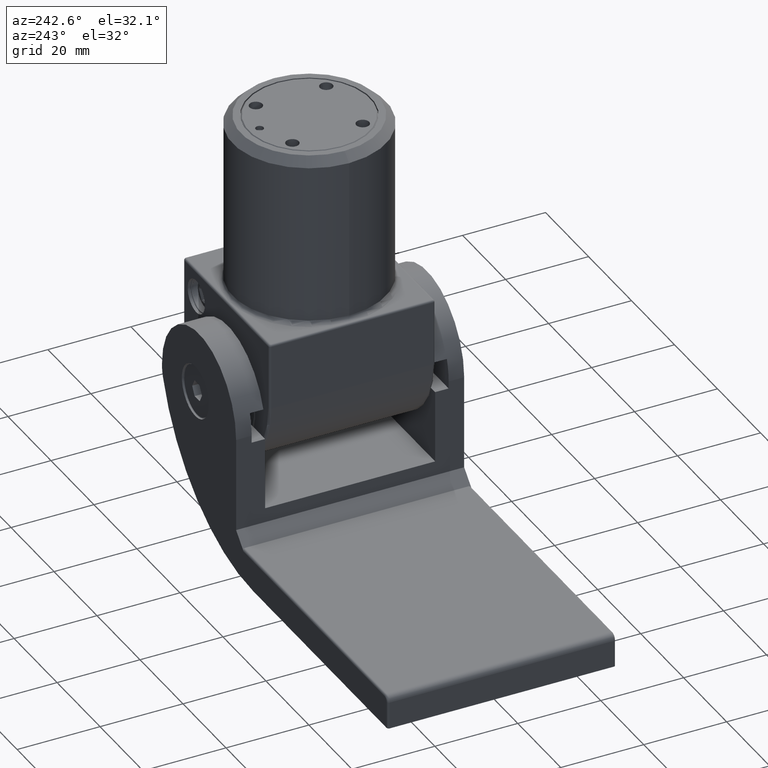
[diagram: clean part render]
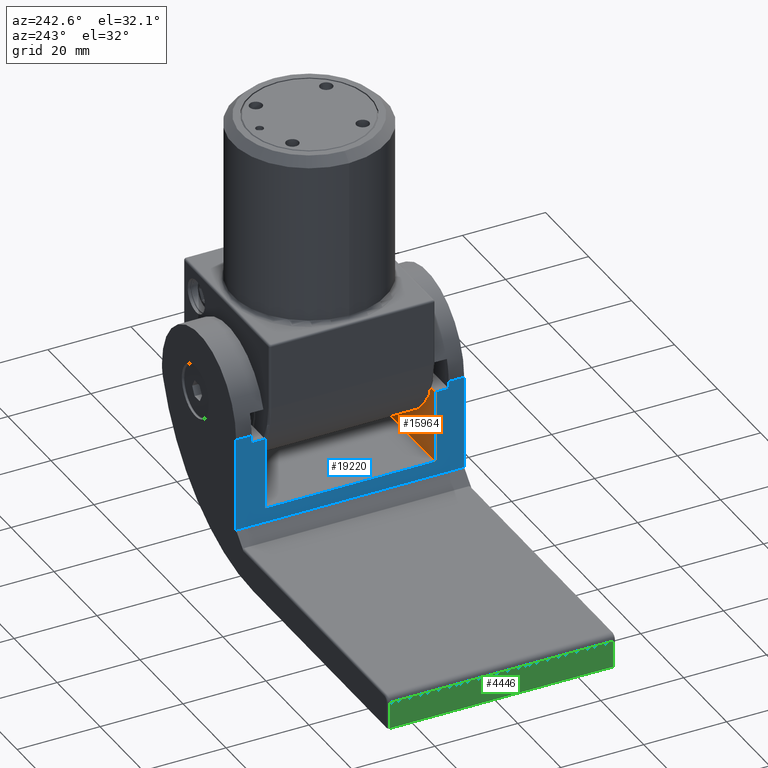
[diagram: same view with three faces highlighted in distinct colors, each labeled with its STEP entity id]
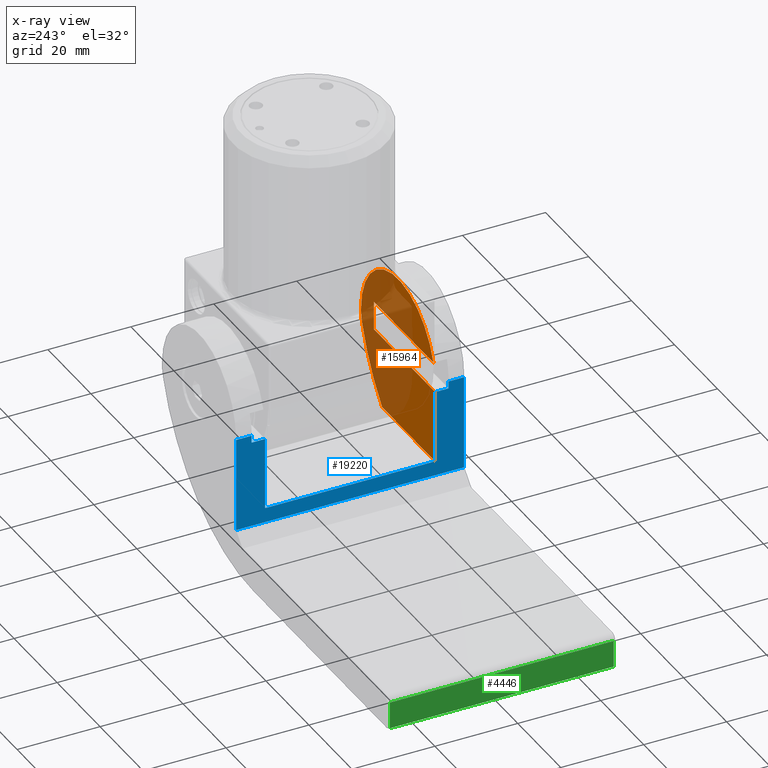
[diagram: x-ray of the same camera — body ghosted, the three highlighted faces saturated]
A machine part, auxiliary view with three faces highlighted in distinct colors.
The next image is the same camera in x-ray (body ghosted, the three faces saturated) — at least one of them is partly hidden behind the body in this view.
Their STEP definitions:

[orange] entity #15964 — the highlighted planar face has unit normal (0, -1, 0).
#570 = ORIENTED_EDGE ( 'NONE', *, *, #10798, .T. ) ;
#1446 = ORIENTED_EDGE ( 'NONE', *, *, #21345, .F. ) ;
#1845 = DIRECTION ( 'NONE',  ( 0.000000000000000000, 0.000000000000000000, 1.000000000000000000 ) ) ;
#2025 = CIRCLE ( 'NONE', #6983, 17.25000000000000711 ) ;
#2366 = AXIS2_PLACEMENT_3D ( 'NONE', #5523, #17424, #7119 ) ;
#3204 = LINE ( 'NONE', #5062, #17753 ) ;
#3335 = CARTESIAN_POINT ( 'NONE',  ( 17.99999999999998934, -20.50000000000000000, 13.49999999999999822 ) ) ;
#3606 = DIRECTION ( 'NONE',  ( 0.000000000000000000, 0.000000000000000000, -1.000000000000000000 ) ) ;
#4054 = ORIENTED_EDGE ( 'NONE', *, *, #12174, .F. ) ;
#4516 = DIRECTION ( 'NONE',  ( 0.000000000000000000, -0.000000000000000000, -1.000000000000000000 ) ) ;
#4692 = CARTESIAN_POINT ( 'NONE',  ( 46.49999999999998579, -20.50000000000000000, 13.50000000000000000 ) ) ;
#4985 = DIRECTION ( 'NONE',  ( 1.000000000000000000, 0.000000000000000000, 0.000000000000000000 ) ) ;
#5062 = CARTESIAN_POINT ( 'NONE',  ( 17.99999999999999289, -20.50000000000000000, -10.99999999999999645 ) ) ;
#5201 = VECTOR ( 'NONE', #1845, 1000.000000000000000 ) ;
#5208 = EDGE_CURVE ( 'NONE', #8199, #10697, #21118, .T. ) ;
#5216 = VECTOR ( 'NONE', #6667, 1000.000000000000000 ) ;
#5384 = CARTESIAN_POINT ( 'NONE',  ( 46.49999999999998579, -20.50000000000000000, -71.40732788777421547 ) ) ;
#5523 = CARTESIAN_POINT ( 'NONE',  ( 9.999999999999980460, -20.50000000000000000, 18.61184210526317884 ) ) ;
#6315 = CARTESIAN_POINT ( 'NONE',  ( 18.81832327484500667, -20.50000000000000000, 13.49999999999999645 ) ) ;
#6389 = PLANE ( 'NONE',  #10819 ) ;
#6667 = DIRECTION ( 'NONE',  ( -1.000000000000000000, 0.000000000000000000, -6.086749038515113044E-17 ) ) ;
#6983 = AXIS2_PLACEMENT_3D ( 'NONE', #12229, #14046, #17483 ) ;
#7034 = CIRCLE ( 'NONE', #2366, 44.11184210526318594 ) ;
#7119 = DIRECTION ( 'NONE',  ( 0.000000000000000000, 0.000000000000000000, -1.000000000000000000 ) ) ;
#7511 = CARTESIAN_POINT ( 'NONE',  ( 42.69546483921939739, -20.50000000000000000, -10.99999999999999645 ) ) ;
#7581 = CARTESIAN_POINT ( 'NONE',  ( 17.99999999999998934, -20.50000000000000000, 6.499999999999998224 ) ) ;
#7707 = CARTESIAN_POINT ( 'NONE',  ( 17.99999999999999289, -20.50000000000000000, -10.99999999999999645 ) ) ;
#8199 = VERTEX_POINT ( 'NONE', #11514 ) ;
#8569 = LINE ( 'NONE', #12859, #13965 ) ;
#9004 = LINE ( 'NONE', #3335, #5216 ) ;
#9157 = ORIENTED_EDGE ( 'NONE', *, *, #5208, .T. ) ;
#9410 = VERTEX_POINT ( 'NONE', #15524 ) ;
#10074 = EDGE_CURVE ( 'NONE', #16486, #8199, #8569, .T. ) ;
#10294 = DIRECTION ( 'NONE',  ( -0.000000000000000000, -0.000000000000000000, 1.000000000000000000 ) ) ;
#10472 = EDGE_CURVE ( 'NONE', #15147, #19306, #7034, .T. ) ;
#10697 = VERTEX_POINT ( 'NONE', #4692 ) ;
#10798 = EDGE_CURVE ( 'NONE', #10697, #18405, #9004, .T. ) ;
#10819 = AXIS2_PLACEMENT_3D ( 'NONE', #11291, #19958, #4516 ) ;
#11291 = CARTESIAN_POINT ( 'NONE',  ( 17.99999999999999289, -20.50000000000000000, -71.40732788777421547 ) ) ;
#11514 = CARTESIAN_POINT ( 'NONE',  ( 46.49999999999998579, -20.50000000000000000, 6.499999999999992006 ) ) ;
#11516 = LINE ( 'NONE', #18740, #15568 ) ;
#11555 = FACE_OUTER_BOUND ( 'NONE', #18696, .T. ) ;
#11635 = CARTESIAN_POINT ( 'NONE',  ( 52.02748312439729972, -20.50000000000000000, 5.212391513982630897 ) ) ;
#12174 = EDGE_CURVE ( 'NONE', #19306, #9410, #18413, .T. ) ;
#12229 = CARTESIAN_POINT ( 'NONE',  ( 35.25000000000000000, -20.50000000000000000, 8.249999999999996447 ) ) ;
#12859 = CARTESIAN_POINT ( 'NONE',  ( 17.99999999999999289, -20.50000000000000000, 6.499999999999992006 ) ) ;
#13965 = VECTOR ( 'NONE', #14673, 1000.000000000000000 ) ;
#14046 = DIRECTION ( 'NONE',  ( 0.000000000000000000, -1.000000000000000000, 0.000000000000000000 ) ) ;
#14514 = ORIENTED_EDGE ( 'NONE', *, *, #19421, .F. ) ;
#14673 = DIRECTION ( 'NONE',  ( 1.000000000000000000, 0.000000000000000000, 0.000000000000000000 ) ) ;
#15147 = VERTEX_POINT ( 'NONE', #7511 ) ;
#15524 = CARTESIAN_POINT ( 'NONE',  ( 52.50000000000000711, -20.50000000000000000, 8.249999999999998224 ) ) ;
#15568 = VECTOR ( 'NONE', #10294, 1000.000000000000000 ) ;
#15964 = ADVANCED_FACE ( 'NONE', ( #11555 ), #6389, .F. ) ;
#16209 = ORIENTED_EDGE ( 'NONE', *, *, #17708, .T. ) ;
#16253 = AXIS2_PLACEMENT_3D ( 'NONE', #17449, #20641, #3606 ) ;
#16486 = VERTEX_POINT ( 'NONE', #7581 ) ;
#17424 = DIRECTION ( 'NONE',  ( 0.000000000000000000, -1.000000000000000000, 0.000000000000000000 ) ) ;
#17449 = CARTESIAN_POINT ( 'NONE',  ( 42.49999999999999289, -20.50000000000000000, 8.249999999999996447 ) ) ;
#17483 = DIRECTION ( 'NONE',  ( 0.000000000000000000, 0.000000000000000000, -1.000000000000000000 ) ) ;
#17708 = EDGE_CURVE ( 'NONE', #19567, #16486, #11516, .T. ) ;
#17753 = VECTOR ( 'NONE', #4985, 1000.000000000000000 ) ;
#17879 = ORIENTED_EDGE ( 'NONE', *, *, #10472, .F. ) ;
#18405 = VERTEX_POINT ( 'NONE', #6315 ) ;
#18413 = CIRCLE ( 'NONE', #16253, 10.00000000000000533 ) ;
#18696 = EDGE_LOOP ( 'NONE', ( #9157, #570, #14514, #4054, #17879, #1446, #16209, #20625 ) ) ;
#18740 = CARTESIAN_POINT ( 'NONE',  ( 17.99999999999999289, -20.50000000000000000, -71.40732788777421547 ) ) ;
#19306 = VERTEX_POINT ( 'NONE', #11635 ) ;
#19421 = EDGE_CURVE ( 'NONE', #9410, #18405, #2025, .T. ) ;
#19567 = VERTEX_POINT ( 'NONE', #7707 ) ;
#19958 = DIRECTION ( 'NONE',  ( 0.000000000000000000, -1.000000000000000000, 0.000000000000000000 ) ) ;
#20625 = ORIENTED_EDGE ( 'NONE', *, *, #10074, .T. ) ;
#20641 = DIRECTION ( 'NONE',  ( 0.000000000000000000, -1.000000000000000000, 0.000000000000000000 ) ) ;
#21118 = LINE ( 'NONE', #5384, #5201 ) ;
#21345 = EDGE_CURVE ( 'NONE', #19567, #15147, #3204, .T. ) ;

[blue] entity #19220 — the highlighted planar face has unit normal (1, 0, 0).
#652 = VERTEX_POINT ( 'NONE', #9511 ) ;
#694 = LINE ( 'NONE', #16120, #10125 ) ;
#933 = FACE_OUTER_BOUND ( 'NONE', #7736, .T. ) ;
#1245 = PLANE ( 'NONE',  #17777 ) ;
#1780 = EDGE_CURVE ( 'NONE', #15010, #16486, #20674, .T. ) ;
#1941 = EDGE_CURVE ( 'NONE', #9949, #5022, #694, .T. ) ;
#1998 = CARTESIAN_POINT ( 'NONE',  ( 17.99999999999998934, -23.75000000000000000, 6.499999999999998224 ) ) ;
#2036 = ORIENTED_EDGE ( 'NONE', *, *, #7534, .F. ) ;
#2088 = CARTESIAN_POINT ( 'NONE',  ( 17.99999999999998934, 27.50000000000000000, -14.49999999999999822 ) ) ;
#2394 = VERTEX_POINT ( 'NONE', #2477 ) ;
#2477 = CARTESIAN_POINT ( 'NONE',  ( 17.99999999999998934, 23.75000000000000000, 6.499999999999998224 ) ) ;
#2563 = LINE ( 'NONE', #5844, #18489 ) ;
#2826 = VECTOR ( 'NONE', #17342, 1000.000000000000000 ) ;
#2924 = CARTESIAN_POINT ( 'NONE',  ( 17.99999999999998934, 23.75000000000000000, 6.499999999999998224 ) ) ;
#2972 = CARTESIAN_POINT ( 'NONE',  ( 17.99999999999998934, -27.50000000000000000, -14.49999999999999822 ) ) ;
#2982 = DIRECTION ( 'NONE',  ( 0.000000000000000000, 0.000000000000000000, 1.000000000000000000 ) ) ;
#2998 = DIRECTION ( 'NONE',  ( 0.000000000000000000, 0.000000000000000000, 1.000000000000000000 ) ) ;
#3076 = VERTEX_POINT ( 'NONE', #13371 ) ;
#3834 = VECTOR ( 'NONE', #15650, 1000.000000000000000 ) ;
#4190 = LINE ( 'NONE', #12442, #2826 ) ;
#4268 = DIRECTION ( 'NONE',  ( -0.000000000000000000, 1.000000000000000000, -0.000000000000000000 ) ) ;
#4374 = CARTESIAN_POINT ( 'NONE',  ( 17.99999999999998934, 23.75000000000000000, 8.249999999999992895 ) ) ;
#4403 = ORIENTED_EDGE ( 'NONE', *, *, #14250, .T. ) ;
#4609 = CARTESIAN_POINT ( 'NONE',  ( 17.99999999999998934, 20.50000000000000000, -10.99999999999999645 ) ) ;
#4746 = VECTOR ( 'NONE', #4268, 1000.000000000000000 ) ;
#4937 = DIRECTION ( 'NONE',  ( -0.000000000000000000, -1.000000000000000000, -0.000000000000000000 ) ) ;
#4990 = DIRECTION ( 'NONE',  ( 0.000000000000000000, 0.000000000000000000, 1.000000000000000000 ) ) ;
#5002 = EDGE_CURVE ( 'NONE', #15010, #3076, #19790, .T. ) ;
#5022 = VERTEX_POINT ( 'NONE', #21894 ) ;
#5844 = CARTESIAN_POINT ( 'NONE',  ( 17.99999999999998934, 27.50000000000000000, -14.49999999999999822 ) ) ;
#6228 = LINE ( 'NONE', #2924, #18921 ) ;
#6602 = DIRECTION ( 'NONE',  ( 0.000000000000000000, 0.000000000000000000, -1.000000000000000000 ) ) ;
#6647 = EDGE_CURVE ( 'NONE', #18639, #9065, #12984, .T. ) ;
#7207 = EDGE_CURVE ( 'NONE', #3076, #652, #20799, .T. ) ;
#7443 = DIRECTION ( 'NONE',  ( -0.000000000000000000, -1.000000000000000000, -0.000000000000000000 ) ) ;
#7534 = EDGE_CURVE ( 'NONE', #18639, #19567, #17794, .T. ) ;
#7581 = CARTESIAN_POINT ( 'NONE',  ( 17.99999999999998934, -20.50000000000000000, 6.499999999999998224 ) ) ;
#7707 = CARTESIAN_POINT ( 'NONE',  ( 17.99999999999999289, -20.50000000000000000, -10.99999999999999645 ) ) ;
#7736 = EDGE_LOOP ( 'NONE', ( #16101, #13333, #13525, #2036, #13462, #13264, #4403, #16046, #13019, #10146, #12801, #18067 ) ) ;
#7988 = EDGE_CURVE ( 'NONE', #19307, #652, #9989, .T. ) ;
#8900 = VECTOR ( 'NONE', #4990, 1000.000000000000000 ) ;
#9065 = VERTEX_POINT ( 'NONE', #19183 ) ;
#9471 = CARTESIAN_POINT ( 'NONE',  ( 17.99999999999998934, 27.50000000000000000, 8.249999999999992895 ) ) ;
#9511 = CARTESIAN_POINT ( 'NONE',  ( 17.99999999999998934, -27.50000000000000000, 8.249999999999992895 ) ) ;
#9949 = VERTEX_POINT ( 'NONE', #2088 ) ;
#9989 = LINE ( 'NONE', #11912, #8900 ) ;
#10125 = VECTOR ( 'NONE', #19686, 1000.000000000000000 ) ;
#10146 = ORIENTED_EDGE ( 'NONE', *, *, #18989, .T. ) ;
#10294 = DIRECTION ( 'NONE',  ( -0.000000000000000000, -0.000000000000000000, 1.000000000000000000 ) ) ;
#11516 = LINE ( 'NONE', #18740, #15568 ) ;
#11707 = CARTESIAN_POINT ( 'NONE',  ( 17.99999999999998934, 27.50000000000000000, -14.49999999999999822 ) ) ;
#11912 = CARTESIAN_POINT ( 'NONE',  ( 17.99999999999998934, -27.50000000000000000, -14.49999999999999822 ) ) ;
#11968 = VECTOR ( 'NONE', #2982, 1000.000000000000000 ) ;
#12442 = CARTESIAN_POINT ( 'NONE',  ( 17.99999999999998934, -23.75000000000000000, 6.499999999999998224 ) ) ;
#12801 = ORIENTED_EDGE ( 'NONE', *, *, #7988, .T. ) ;
#12984 = LINE ( 'NONE', #20642, #3834 ) ;
#13019 = ORIENTED_EDGE ( 'NONE', *, *, #1941, .F. ) ;
#13264 = ORIENTED_EDGE ( 'NONE', *, *, #19459, .T. ) ;
#13333 = ORIENTED_EDGE ( 'NONE', *, *, #1780, .T. ) ;
#13371 = CARTESIAN_POINT ( 'NONE',  ( 17.99999999999998934, -23.75000000000000355, 8.249999999999996447 ) ) ;
#13462 = ORIENTED_EDGE ( 'NONE', *, *, #6647, .T. ) ;
#13525 = ORIENTED_EDGE ( 'NONE', *, *, #17708, .F. ) ;
#13535 = CARTESIAN_POINT ( 'NONE',  ( 17.99999999999998934, 27.50000000000000000, 8.249999999999992895 ) ) ;
#14110 = VERTEX_POINT ( 'NONE', #4374 ) ;
#14250 = EDGE_CURVE ( 'NONE', #2394, #14110, #6228, .T. ) ;
#14363 = CARTESIAN_POINT ( 'NONE',  ( 17.99999999999998934, -23.75000000000000000, 6.499999999999998224 ) ) ;
#14772 = LINE ( 'NONE', #9471, #17435 ) ;
#14832 = DIRECTION ( 'NONE',  ( -0.000000000000000000, -1.000000000000000000, -0.000000000000000000 ) ) ;
#15010 = VERTEX_POINT ( 'NONE', #1998 ) ;
#15124 = CARTESIAN_POINT ( 'NONE',  ( 17.99999999999998934, -23.75000000000000000, 6.499999999999998224 ) ) ;
#15568 = VECTOR ( 'NONE', #10294, 1000.000000000000000 ) ;
#15650 = DIRECTION ( 'NONE',  ( -0.000000000000000000, -0.000000000000000000, 1.000000000000000000 ) ) ;
#16046 = ORIENTED_EDGE ( 'NONE', *, *, #17473, .F. ) ;
#16101 = ORIENTED_EDGE ( 'NONE', *, *, #5002, .F. ) ;
#16120 = CARTESIAN_POINT ( 'NONE',  ( 17.99999999999998934, 27.50000000000000000, -14.49999999999999822 ) ) ;
#16486 = VERTEX_POINT ( 'NONE', #7581 ) ;
#16907 = DIRECTION ( 'NONE',  ( 1.000000000000000000, 0.000000000000000000, 0.000000000000000000 ) ) ;
#17027 = DIRECTION ( 'NONE',  ( 8.462065736472229849E-17, -1.000000000000000000, 0.000000000000000000 ) ) ;
#17342 = DIRECTION ( 'NONE',  ( -0.000000000000000000, 1.000000000000000000, -0.000000000000000000 ) ) ;
#17373 = CARTESIAN_POINT ( 'NONE',  ( 17.99999999999998934, 20.50000000000000000, -10.99999999999999645 ) ) ;
#17435 = VECTOR ( 'NONE', #14832, 1000.000000000000000 ) ;
#17473 = EDGE_CURVE ( 'NONE', #5022, #14110, #14772, .T. ) ;
#17708 = EDGE_CURVE ( 'NONE', #19567, #16486, #11516, .T. ) ;
#17777 = AXIS2_PLACEMENT_3D ( 'NONE', #11707, #16907, #6602 ) ;
#17794 = LINE ( 'NONE', #4609, #21062 ) ;
#18067 = ORIENTED_EDGE ( 'NONE', *, *, #7207, .F. ) ;
#18489 = VECTOR ( 'NONE', #7443, 1000.000000000000000 ) ;
#18639 = VERTEX_POINT ( 'NONE', #17373 ) ;
#18740 = CARTESIAN_POINT ( 'NONE',  ( 17.99999999999999289, -20.50000000000000000, -71.40732788777421547 ) ) ;
#18921 = VECTOR ( 'NONE', #2998, 1000.000000000000000 ) ;
#18989 = EDGE_CURVE ( 'NONE', #9949, #19307, #2563, .T. ) ;
#19183 = CARTESIAN_POINT ( 'NONE',  ( 17.99999999999998934, 20.50000000000000000, 6.499999999999992006 ) ) ;
#19220 = ADVANCED_FACE ( 'NONE', ( #933 ), #1245, .F. ) ;
#19307 = VERTEX_POINT ( 'NONE', #2972 ) ;
#19459 = EDGE_CURVE ( 'NONE', #9065, #2394, #4190, .T. ) ;
#19567 = VERTEX_POINT ( 'NONE', #7707 ) ;
#19686 = DIRECTION ( 'NONE',  ( 0.000000000000000000, 0.000000000000000000, 1.000000000000000000 ) ) ;
#19790 = LINE ( 'NONE', #15124, #11968 ) ;
#20642 = CARTESIAN_POINT ( 'NONE',  ( 17.99999999999998934, 20.50000000000000000, -71.40732788777421547 ) ) ;
#20674 = LINE ( 'NONE', #14363, #4746 ) ;
#20799 = LINE ( 'NONE', #13535, #21339 ) ;
#21062 = VECTOR ( 'NONE', #17027, 1000.000000000000000 ) ;
#21339 = VECTOR ( 'NONE', #4937, 1000.000000000000000 ) ;
#21894 = CARTESIAN_POINT ( 'NONE',  ( 17.99999999999998934, 27.50000000000000000, 8.249999999999992895 ) ) ;

[green] entity #4446 — the highlighted planar face has unit normal (1, 0, 0).
#65 = VECTOR ( 'NONE', #3931, 1000.000000000000000 ) ;
#968 = CARTESIAN_POINT ( 'NONE',  ( -52.49999999999999289, -27.00000000000000000, -19.00000000000000000 ) ) ;
#1504 = VERTEX_POINT ( 'NONE', #968 ) ;
#1673 = VERTEX_POINT ( 'NONE', #15814 ) ;
#2630 = PLANE ( 'NONE',  #20244 ) ;
#2815 = VECTOR ( 'NONE', #10158, 1000.000000000000000 ) ;
#3931 = DIRECTION ( 'NONE',  ( -0.000000000000000000, 1.000000000000000000, -0.000000000000000000 ) ) ;
#4446 = ADVANCED_FACE ( 'NONE', ( #7397 ), #2630, .F. ) ;
#5856 = EDGE_CURVE ( 'NONE', #13228, #1504, #9772, .T. ) ;
#6108 = DIRECTION ( 'NONE',  ( 8.673617379884036458E-16, -0.000000000000000000, -1.000000000000000000 ) ) ;
#6167 = DIRECTION ( 'NONE',  ( 1.000000000000000000, -0.000000000000000000, 8.673617379884036458E-16 ) ) ;
#6198 = EDGE_CURVE ( 'NONE', #1504, #13650, #12185, .T. ) ;
#7397 = FACE_OUTER_BOUND ( 'NONE', #20252, .T. ) ;
#7478 = CARTESIAN_POINT ( 'NONE',  ( -52.49999999999998579, 27.50000000000000000, -25.50000000000000000 ) ) ;
#8402 = ORIENTED_EDGE ( 'NONE', *, *, #6198, .T. ) ;
#9772 = LINE ( 'NONE', #14120, #14100 ) ;
#10158 = DIRECTION ( 'NONE',  ( -0.000000000000000000, -1.000000000000000000, -0.000000000000000000 ) ) ;
#10632 = LINE ( 'NONE', #21914, #2815 ) ;
#12185 = LINE ( 'NONE', #19237, #65 ) ;
#12722 = VECTOR ( 'NONE', #6108, 1000.000000000000000 ) ;
#13228 = VERTEX_POINT ( 'NONE', #13451 ) ;
#13451 = CARTESIAN_POINT ( 'NONE',  ( -52.49999999999998579, -27.00000000000000000, -25.50000000000000000 ) ) ;
#13650 = VERTEX_POINT ( 'NONE', #21563 ) ;
#13808 = EDGE_CURVE ( 'NONE', #13650, #1673, #16493, .T. ) ;
#14100 = VECTOR ( 'NONE', #19704, 1000.000000000000000 ) ;
#14120 = CARTESIAN_POINT ( 'NONE',  ( -52.49999999999998579, -27.00000000000000000, -25.50000000000000000 ) ) ;
#15814 = CARTESIAN_POINT ( 'NONE',  ( -52.49999999999998579, 27.00000000000000000, -25.50000000000000000 ) ) ;
#16408 = DIRECTION ( 'NONE',  ( 8.673617379884036458E-16, 0.000000000000000000, -1.000000000000000000 ) ) ;
#16418 = CARTESIAN_POINT ( 'NONE',  ( -52.49999999999998579, 27.00000000000000000, -25.50000000000000000 ) ) ;
#16493 = LINE ( 'NONE', #16418, #12722 ) ;
#17923 = ORIENTED_EDGE ( 'NONE', *, *, #20038, .T. ) ;
#19175 = ORIENTED_EDGE ( 'NONE', *, *, #13808, .T. ) ;
#19237 = CARTESIAN_POINT ( 'NONE',  ( -52.49999999999999289, 27.50000000000000000, -19.00000000000000000 ) ) ;
#19348 = ORIENTED_EDGE ( 'NONE', *, *, #5856, .T. ) ;
#19704 = DIRECTION ( 'NONE',  ( -8.673617379884036458E-16, 0.000000000000000000, 1.000000000000000000 ) ) ;
#20038 = EDGE_CURVE ( 'NONE', #1673, #13228, #10632, .T. ) ;
#20244 = AXIS2_PLACEMENT_3D ( 'NONE', #7478, #6167, #16408 ) ;
#20252 = EDGE_LOOP ( 'NONE', ( #17923, #19348, #8402, #19175 ) ) ;
#21563 = CARTESIAN_POINT ( 'NONE',  ( -52.49999999999999289, 27.00000000000000000, -19.00000000000000000 ) ) ;
#21914 = CARTESIAN_POINT ( 'NONE',  ( -52.49999999999998579, 27.50000000000000000, -25.50000000000000000 ) ) ;